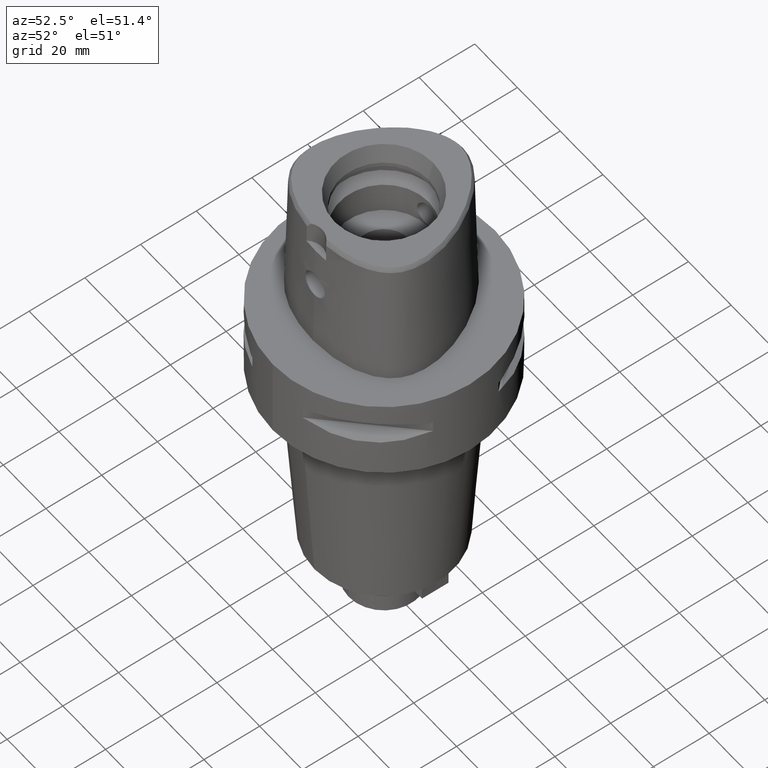
[diagram: clean part render]
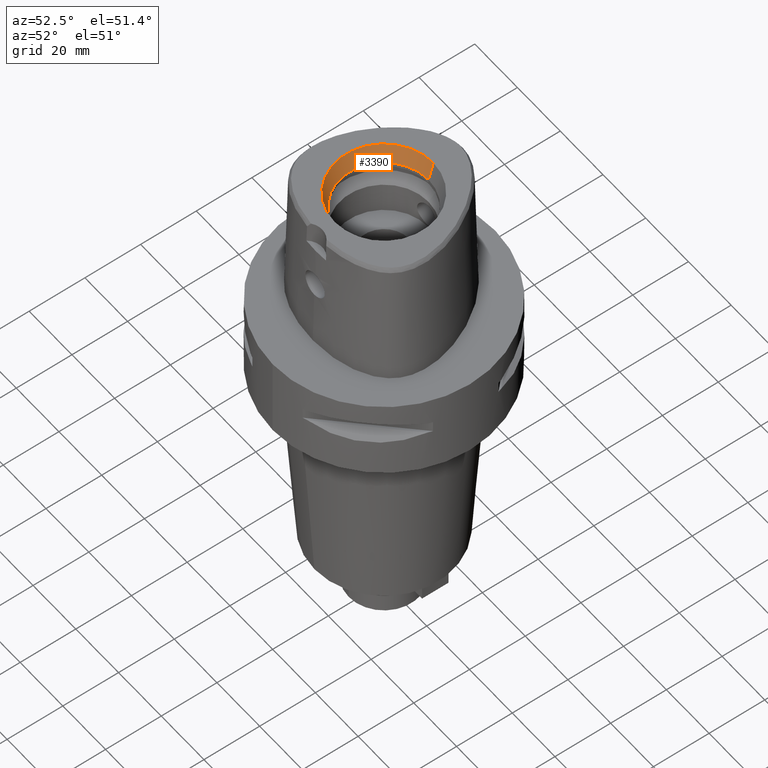
[diagram: same view with one face highlighted and labeled with its STEP entity id]
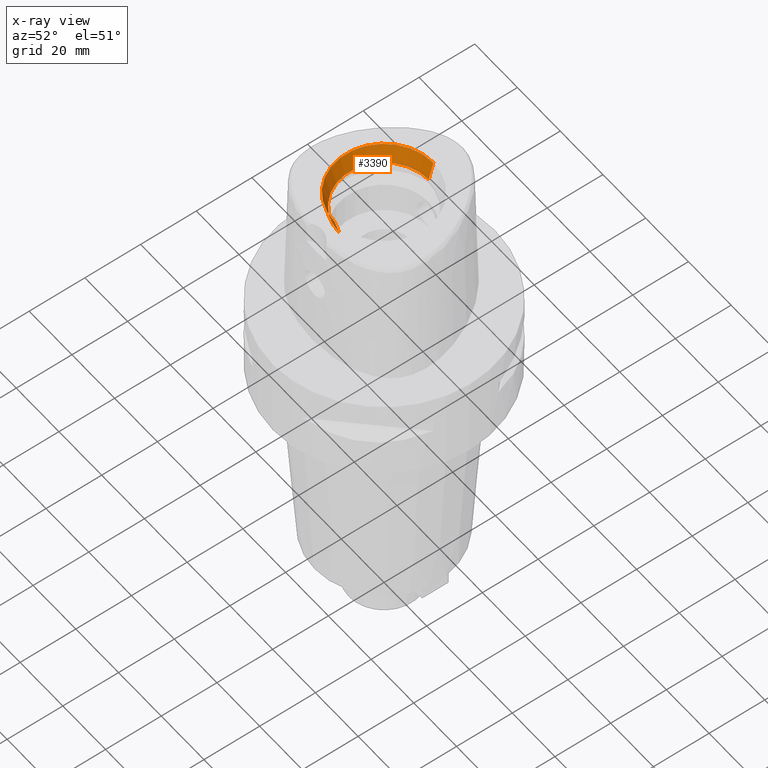
[diagram: x-ray of the same camera — body ghosted, the highlighted face saturated]
A machine part, auxiliary view. The second image highlights one B-rep face of the part: STEP entity #3390.
The next image is the same camera in x-ray: the body ghosted, the highlighted face saturated — about 0% of this face is hidden behind the body in this view.
In plain terms, the highlighted conical surface has half-angle 15 deg.
Its self-contained STEP definition (entity closure, byte-faithful):
#114=CARTESIAN_POINT('',(0.E0,0.E0,4.8E1));
#115=DIRECTION('',(0.E0,0.E0,1.E0));
#116=DIRECTION('',(0.E0,1.E0,0.E0));
#117=AXIS2_PLACEMENT_3D('',#114,#115,#116);
#1186=CARTESIAN_POINT('',(0.E0,0.E0,4.16E1));
#1187=DIRECTION('',(0.E0,0.E0,1.E0));
#1188=DIRECTION('',(0.E0,1.E0,0.E0));
#1189=AXIS2_PLACEMENT_3D('',#1186,#1187,#1188);
#1194=DIRECTION('',(0.E0,-2.588190451026E-1,9.659258262891E-1));
#1195=VECTOR('',#1194,6.625767554625E0);
#1196=CARTESIAN_POINT('',(0.E0,-1.6E1,4.16E1));
#1197=LINE('',#1196,#1195);
#1209=DIRECTION('',(0.E0,2.588190451026E-1,9.659258262891E-1));
#1210=VECTOR('',#1209,6.625767554625E0);
#1211=CARTESIAN_POINT('',(0.E0,1.6E1,4.16E1));
#1212=LINE('',#1211,#1210);
#1661=CARTESIAN_POINT('',(0.E0,1.771487483156E1,4.8E1));
#1662=CARTESIAN_POINT('',(0.E0,-1.771487483156E1,4.8E1));
#1663=VERTEX_POINT('',#1661);
#1664=VERTEX_POINT('',#1662);
#1835=CARTESIAN_POINT('',(0.E0,-1.6E1,4.16E1));
#1836=VERTEX_POINT('',#1835);
#1837=CARTESIAN_POINT('',(0.E0,1.6E1,4.16E1));
#1838=VERTEX_POINT('',#1837);
#3377=CARTESIAN_POINT('',(0.E0,0.E0,4.48E1));
#3378=DIRECTION('',(0.E0,0.E0,1.E0));
#3379=DIRECTION('',(0.E0,1.E0,0.E0));
#3380=AXIS2_PLACEMENT_3D('',#3377,#3378,#3379);
#3381=CONICAL_SURFACE('',#3380,1.685743741578E1,1.5E1);
#3382=ORIENTED_EDGE('',*,*,#1868,.F.);
#3384=ORIENTED_EDGE('',*,*,#3383,.F.);
#3385=ORIENTED_EDGE('',*,*,#3370,.T.);
#3387=ORIENTED_EDGE('',*,*,#3386,.T.);
#3388=EDGE_LOOP('',(#3382,#3384,#3385,#3387));
#3389=FACE_OUTER_BOUND('',#3388,.F.);
#118=CIRCLE('',#117,1.771487483156E1);
#1190=CIRCLE('',#1189,1.6E1);
#1868=EDGE_CURVE('',#1663,#1664,#118,.T.);
#3370=EDGE_CURVE('',#1838,#1836,#1190,.T.);
#3383=EDGE_CURVE('',#1838,#1663,#1212,.T.);
#3386=EDGE_CURVE('',#1836,#1664,#1197,.T.);
#3390=ADVANCED_FACE('',(#3389),#3381,.F.);